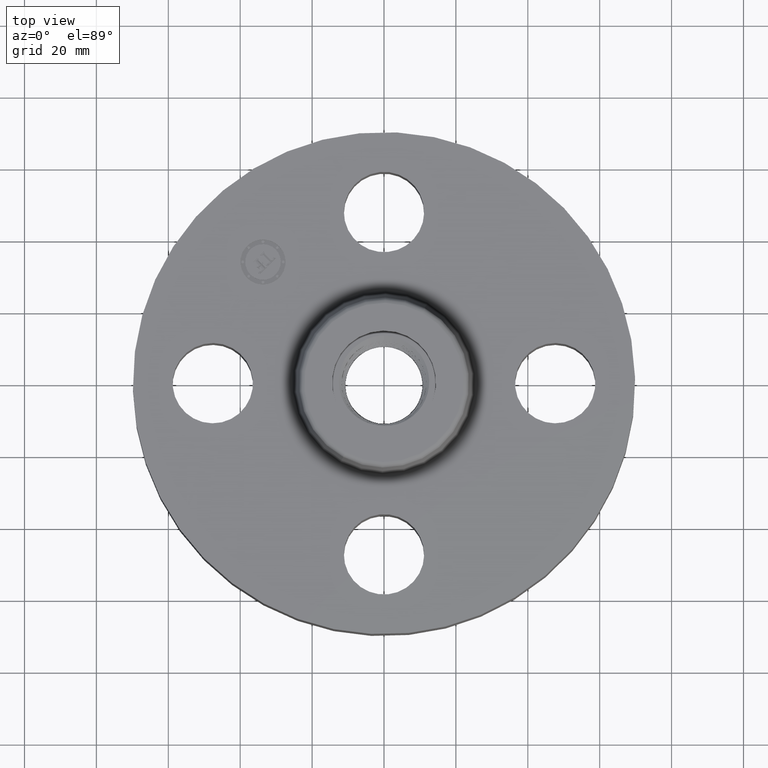
[diagram: clean part render]
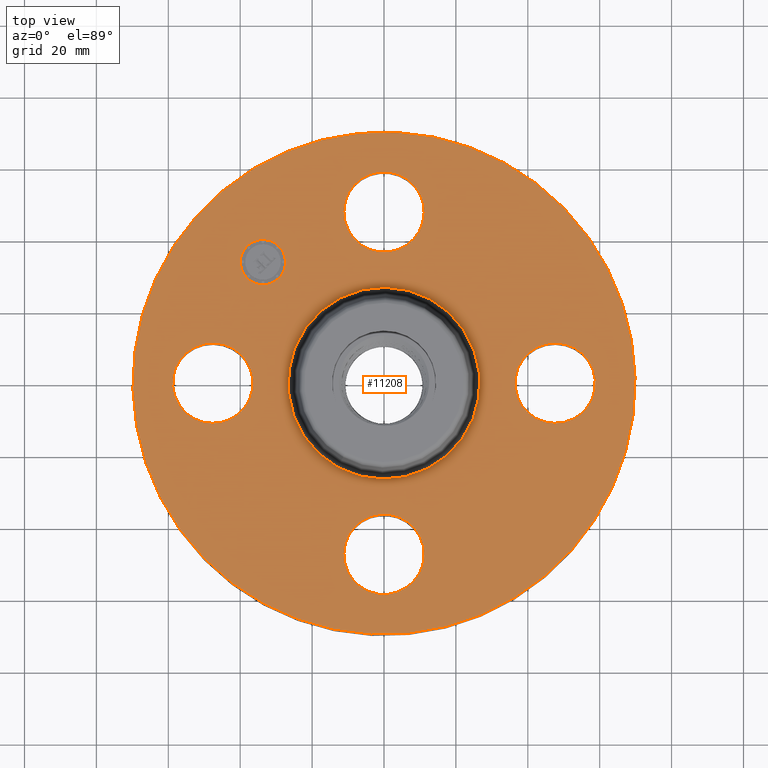
[diagram: same view with one face highlighted and labeled with its STEP entity id]
A machine part, top view. The second image highlights one B-rep face of the part: STEP entity #11208.
In plain terms, the highlighted planar face has unit normal (0, 0, -1).
Its self-contained STEP definition (entity closure, byte-faithful):
#488=AXIS2_PLACEMENT_3D('Circle Axis2P3D',#486,#487,$) ;
#509=AXIS2_PLACEMENT_3D('Circle Axis2P3D',#507,#508,$) ;
#568=AXIS2_PLACEMENT_3D('Circle Axis2P3D',#566,#567,$) ;
#589=AXIS2_PLACEMENT_3D('Circle Axis2P3D',#587,#588,$) ;
#648=AXIS2_PLACEMENT_3D('Circle Axis2P3D',#646,#647,$) ;
#669=AXIS2_PLACEMENT_3D('Circle Axis2P3D',#667,#668,$) ;
#942=AXIS2_PLACEMENT_3D('Circle Axis2P3D',#940,#941,$) ;
#968=AXIS2_PLACEMENT_3D('Circle Axis2P3D',#966,#967,$) ;
#992=AXIS2_PLACEMENT_3D('Circle Axis2P3D',#990,#991,$) ;
#1011=AXIS2_PLACEMENT_3D('Circle Axis2P3D',#1009,#1010,$) ;
#1054=AXIS2_PLACEMENT_3D('Circle Axis2P3D',#1052,#1053,$) ;
#1070=AXIS2_PLACEMENT_3D('Circle Axis2P3D',#1068,#1069,$) ;
#11164=AXIS2_PLACEMENT_3D('Plane Axis2P3D',#11161,#11162,#11163) ;
#11192=AXIS2_PLACEMENT_3D('Circle Axis2P3D',#11190,#11191,$) ;
#11201=AXIS2_PLACEMENT_3D('Circle Axis2P3D',#11199,#11200,$) ;
#450=CARTESIAN_POINT('Vertex',(-1.66405276302,0.386136327233,1.25000000001)) ;
#483=CARTESIAN_POINT('Vertex',(-2.08594723699,-0.386136327233,1.25000000001)) ;
#486=CARTESIAN_POINT('Axis2P3D Location',(-1.87500000001,-3.44431912262E-016,1.25000000001)) ;
#507=CARTESIAN_POINT('Axis2P3D Location',(-1.87500000001,-3.44431912262E-016,1.25000000001)) ;
#530=CARTESIAN_POINT('Vertex',(-0.386136327233,-1.66405276302,1.25000000001)) ;
#563=CARTESIAN_POINT('Vertex',(0.386136327233,-2.08594723699,1.25000000001)) ;
#566=CARTESIAN_POINT('Axis2P3D Location',(2.29621274841E-016,-1.87500000001,1.25000000001)) ;
#587=CARTESIAN_POINT('Axis2P3D Location',(2.29621274841E-016,-1.87500000001,1.25000000001)) ;
#610=CARTESIAN_POINT('Vertex',(1.66405276302,-0.386136327233,1.25000000001)) ;
#643=CARTESIAN_POINT('Vertex',(2.08594723699,0.386136327233,1.25000000001)) ;
#646=CARTESIAN_POINT('Axis2P3D Location',(1.87500000001,1.14810637421E-016,1.25000000001)) ;
#667=CARTESIAN_POINT('Axis2P3D Location',(1.87500000001,1.14810637421E-016,1.25000000001)) ;
#940=CARTESIAN_POINT('Axis2P3D Location',(0.,0.,1.25000000001)) ;
#944=CARTESIAN_POINT('Vertex',(-0.503562686163,-0.921765314135,1.25000000001)) ;
#946=CARTESIAN_POINT('Vertex',(0.503562686163,0.921765314135,1.25000000001)) ;
#966=CARTESIAN_POINT('Axis2P3D Location',(0.,0.,1.25000000001)) ;
#987=CARTESIAN_POINT('Vertex',(1.31842023117,2.41335204521,1.25000000001)) ;
#990=CARTESIAN_POINT('Axis2P3D Location',(0.,0.,1.25000000001)) ;
#994=CARTESIAN_POINT('Vertex',(-1.31842023117,-2.41335204521,1.25000000001)) ;
#1009=CARTESIAN_POINT('Axis2P3D Location',(0.,0.,1.25000000001)) ;
#1042=CARTESIAN_POINT('Vertex',(0.386136327233,1.66405276302,1.25000000001)) ;
#1049=CARTESIAN_POINT('Vertex',(-0.386136327233,2.08594723699,1.25000000001)) ;
#1052=CARTESIAN_POINT('Axis2P3D Location',(0.,1.87500000001,1.25000000001)) ;
#1068=CARTESIAN_POINT('Axis2P3D Location',(0.,1.87500000001,1.25000000001)) ;
#11161=CARTESIAN_POINT('Axis2P3D Location',(0.,2.75000000001,1.25000000001)) ;
#11190=CARTESIAN_POINT('Axis2P3D Location',(-1.32582521473,1.32582521473,1.25000000001)) ;
#11194=CARTESIAN_POINT('Vertex',(-1.50083414307,1.15081628639,1.25000000001)) ;
#11196=CARTESIAN_POINT('Vertex',(-1.15081628639,1.50083414307,1.25000000001)) ;
#11199=CARTESIAN_POINT('Axis2P3D Location',(-1.32582521473,1.32582521473,1.25000000001)) ;
#487=DIRECTION('Axis2P3D Direction',(0.,0.,-0.0393700787402)) ;
#508=DIRECTION('Axis2P3D Direction',(0.,0.,-0.0393700787402)) ;
#567=DIRECTION('Axis2P3D Direction',(-0.,0.,-0.0393700787402)) ;
#588=DIRECTION('Axis2P3D Direction',(-0.,0.,-0.0393700787402)) ;
#647=DIRECTION('Axis2P3D Direction',(0.,-0.,-0.0393700787402)) ;
#668=DIRECTION('Axis2P3D Direction',(0.,-0.,-0.0393700787402)) ;
#941=DIRECTION('Axis2P3D Direction',(0.,0.,-0.0393700787402)) ;
#967=DIRECTION('Axis2P3D Direction',(0.,0.,-0.0393700787402)) ;
#991=DIRECTION('Axis2P3D Direction',(0.,0.,-0.0393700787402)) ;
#1010=DIRECTION('Axis2P3D Direction',(0.,0.,-0.0393700787402)) ;
#1053=DIRECTION('Axis2P3D Direction',(0.,-0.,-0.0393700787402)) ;
#1069=DIRECTION('Axis2P3D Direction',(0.,-0.,-0.0393700787402)) ;
#11162=DIRECTION('Axis2P3D Direction',(0.,0.,-0.0393700787402)) ;
#11163=DIRECTION('Axis2P3D XDirection',(0.0393700787402,0.,0.)) ;
#11191=DIRECTION('Axis2P3D Direction',(0.,0.,-0.0393700787402)) ;
#11200=DIRECTION('Axis2P3D Direction',(0.,0.,-0.0393700787402)) ;
#11167=ORIENTED_EDGE('',*,*,#996,.F.) ;
#11168=ORIENTED_EDGE('',*,*,#1013,.F.) ;
#11171=ORIENTED_EDGE('',*,*,#1072,.T.) ;
#11172=ORIENTED_EDGE('',*,*,#1056,.T.) ;
#11175=ORIENTED_EDGE('',*,*,#948,.T.) ;
#11176=ORIENTED_EDGE('',*,*,#970,.T.) ;
#11179=ORIENTED_EDGE('',*,*,#650,.T.) ;
#11180=ORIENTED_EDGE('',*,*,#671,.T.) ;
#11183=ORIENTED_EDGE('',*,*,#570,.T.) ;
#11184=ORIENTED_EDGE('',*,*,#591,.T.) ;
#11187=ORIENTED_EDGE('',*,*,#490,.T.) ;
#11188=ORIENTED_EDGE('',*,*,#511,.T.) ;
#11205=ORIENTED_EDGE('',*,*,#11198,.T.) ;
#11206=ORIENTED_EDGE('',*,*,#11203,.T.) ;
#11173=FACE_BOUND('',#11170,.T.) ;
#11177=FACE_BOUND('',#11174,.T.) ;
#11181=FACE_BOUND('',#11178,.T.) ;
#11185=FACE_BOUND('',#11182,.T.) ;
#11189=FACE_BOUND('',#11186,.T.) ;
#11207=FACE_BOUND('',#11204,.T.) ;
#11208=ADVANCED_FACE('PartBody',(#11169,#11173,#11177,#11181,#11185,#11189,#11207),#11165,.F.) ;
#489=CIRCLE('generated circle',#488,0.440000000002) ;
#510=CIRCLE('generated circle',#509,0.440000000002) ;
#569=CIRCLE('generated circle',#568,0.440000000002) ;
#590=CIRCLE('generated circle',#589,0.440000000002) ;
#649=CIRCLE('generated circle',#648,0.440000000002) ;
#670=CIRCLE('generated circle',#669,0.440000000002) ;
#943=CIRCLE('generated circle',#942,1.05034597787) ;
#969=CIRCLE('generated circle',#968,1.05034597787) ;
#993=CIRCLE('generated circle',#992,2.75000000001) ;
#1012=CIRCLE('generated circle',#1011,2.75000000001) ;
#1055=CIRCLE('generated circle',#1054,0.440000000002) ;
#1071=CIRCLE('generated circle',#1070,0.440000000002) ;
#11193=CIRCLE('generated circle',#11192,0.247500000001) ;
#11202=CIRCLE('generated circle',#11201,0.247500000001) ;
#490=EDGE_CURVE('',#451,#484,#489,.T.) ;
#511=EDGE_CURVE('',#484,#451,#510,.T.) ;
#570=EDGE_CURVE('',#531,#564,#569,.T.) ;
#591=EDGE_CURVE('',#564,#531,#590,.T.) ;
#650=EDGE_CURVE('',#611,#644,#649,.T.) ;
#671=EDGE_CURVE('',#644,#611,#670,.T.) ;
#948=EDGE_CURVE('',#945,#947,#943,.T.) ;
#970=EDGE_CURVE('',#947,#945,#969,.T.) ;
#996=EDGE_CURVE('',#988,#995,#993,.T.) ;
#1013=EDGE_CURVE('',#995,#988,#1012,.T.) ;
#1056=EDGE_CURVE('',#1043,#1050,#1055,.T.) ;
#1072=EDGE_CURVE('',#1050,#1043,#1071,.T.) ;
#11198=EDGE_CURVE('',#11195,#11197,#11193,.T.) ;
#11203=EDGE_CURVE('',#11197,#11195,#11202,.T.) ;
#11166=EDGE_LOOP('',(#11167,#11168)) ;
#11170=EDGE_LOOP('',(#11171,#11172)) ;
#11174=EDGE_LOOP('',(#11175,#11176)) ;
#11178=EDGE_LOOP('',(#11179,#11180)) ;
#11182=EDGE_LOOP('',(#11183,#11184)) ;
#11186=EDGE_LOOP('',(#11187,#11188)) ;
#11204=EDGE_LOOP('',(#11205,#11206)) ;
#11169=FACE_OUTER_BOUND('',#11166,.T.) ;
#11165=PLANE('',#11164) ;
#451=VERTEX_POINT('',#450) ;
#484=VERTEX_POINT('',#483) ;
#531=VERTEX_POINT('',#530) ;
#564=VERTEX_POINT('',#563) ;
#611=VERTEX_POINT('',#610) ;
#644=VERTEX_POINT('',#643) ;
#945=VERTEX_POINT('',#944) ;
#947=VERTEX_POINT('',#946) ;
#988=VERTEX_POINT('',#987) ;
#995=VERTEX_POINT('',#994) ;
#1043=VERTEX_POINT('',#1042) ;
#1050=VERTEX_POINT('',#1049) ;
#11195=VERTEX_POINT('',#11194) ;
#11197=VERTEX_POINT('',#11196) ;